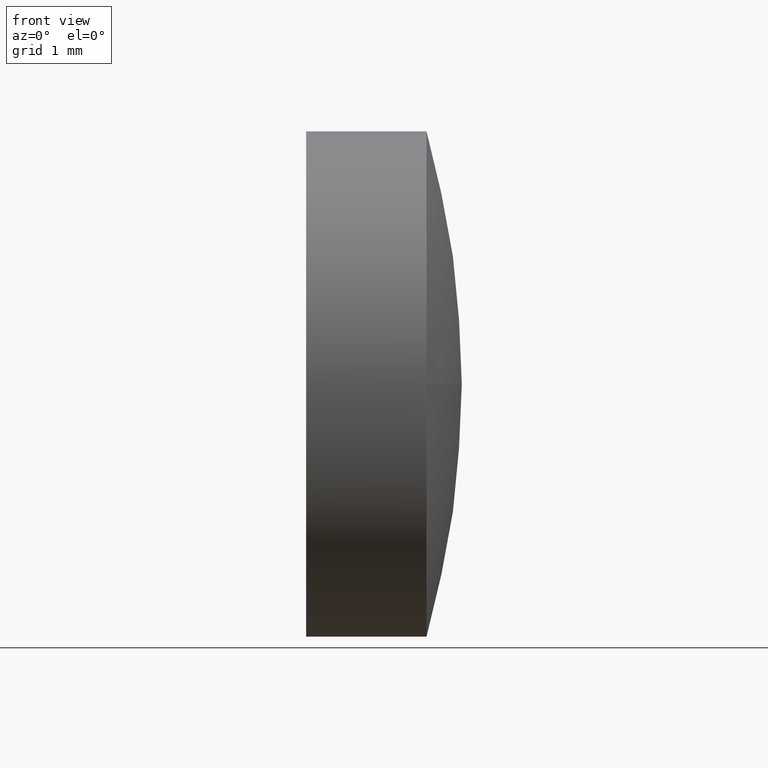
[diagram: clean part render]
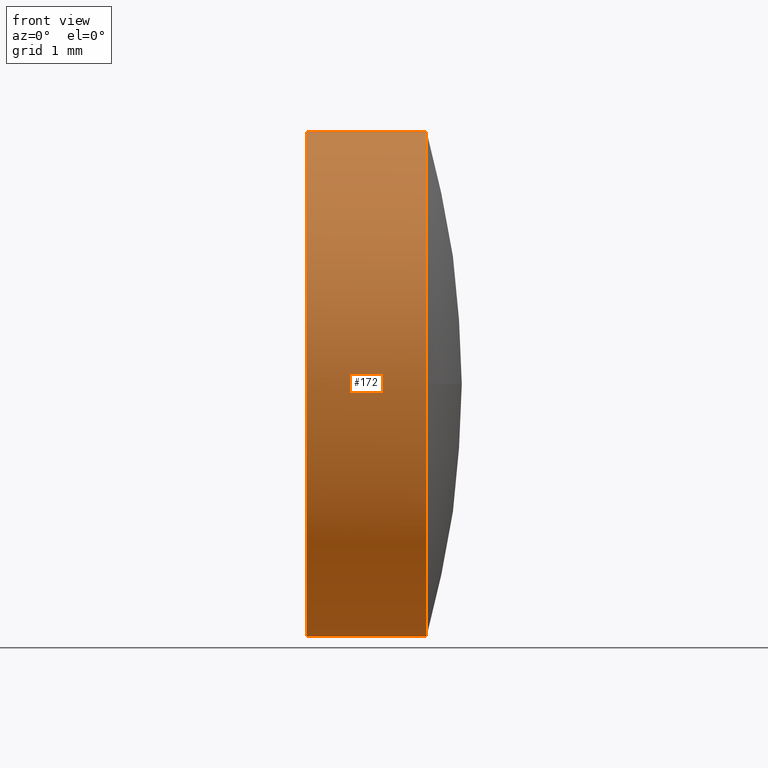
[diagram: same view with one face highlighted and labeled with its STEP entity id]
A machine part, front view. The second image highlights one B-rep face of the part: STEP entity #172.
In plain terms, the highlighted cylindrical surface (partial cylindrical patch) has radius 3.15 mm, axis along (-1, -0, -0).
Its self-contained STEP definition (entity closure, byte-faithful):
#3 = VERTEX_POINT ( 'NONE', #67 ) ;
#5 = CIRCLE ( 'NONE', #92, 3.150000000000013700 ) ;
#6 = VERTEX_POINT ( 'NONE', #104 ) ;
#7 = CARTESIAN_POINT ( 'NONE',  ( 555.8187275599364100, 146.3616492016622000, -3.150000000000013700 ) ) ;
#9 = FACE_OUTER_BOUND ( 'NONE', #122, .T. ) ;
#12 = DIRECTION ( 'NONE',  ( 0.0000000000000000000, 0.0000000000000000000, 1.000000000000000000 ) ) ;
#14 = DIRECTION ( 'NONE',  ( -1.000000000000000000, -0.0000000000000000000, -0.0000000000000000000 ) ) ;
#18 = VERTEX_POINT ( 'NONE', #179 ) ;
#19 = EDGE_CURVE ( 'NONE', #25, #3, #103, .T. ) ;
#25 = VERTEX_POINT ( 'NONE', #177 ) ;
#29 = CARTESIAN_POINT ( 'NONE',  ( 553.4580894711874600, 146.3616492016622000, -3.150000000000013700 ) ) ;
#39 = VERTEX_POINT ( 'NONE', #7 ) ;
#45 = DIRECTION ( 'NONE',  ( 0.0000000000000000000, 0.0000000000000000000, 1.000000000000000000 ) ) ;
#50 = AXIS2_PLACEMENT_3D ( 'NONE', #107, #14, #12 ) ;
#51 = LINE ( 'NONE', #29, #136 ) ;
#67 = CARTESIAN_POINT ( 'NONE',  ( 554.3187275599364100, 146.3616492016622000, 3.150000000000013700 ) ) ;
#68 = EDGE_CURVE ( 'NONE', #39, #18, #117, .T. ) ;
#77 = ORIENTED_EDGE ( 'NONE', *, *, #19, .T. ) ;
#79 = CARTESIAN_POINT ( 'NONE',  ( 553.4580894711874600, 146.3616492016622000, 3.150000000000013700 ) ) ;
#80 = AXIS2_PLACEMENT_3D ( 'NONE', #84, #96, #109 ) ;
#83 = ORIENTED_EDGE ( 'NONE', *, *, #163, .F. ) ;
#84 = CARTESIAN_POINT ( 'NONE',  ( 555.8187275599364100, 146.3616492016622000, 0.0000000000000000000 ) ) ;
#88 = EDGE_CURVE ( 'NONE', #18, #25, #5, .T. ) ;
#90 = ORIENTED_EDGE ( 'NONE', *, *, #68, .T. ) ;
#92 = AXIS2_PLACEMENT_3D ( 'NONE', #166, #185, #45 ) ;
#96 = DIRECTION ( 'NONE',  ( -1.000000000000000000, -0.0000000000000000000, -0.0000000000000000000 ) ) ;
#99 = VECTOR ( 'NONE', #162, 1000.000000000000000 ) ;
#103 = LINE ( 'NONE', #79, #99 ) ;
#104 = CARTESIAN_POINT ( 'NONE',  ( 554.3187275599364100, 146.3616492016622000, -3.150000000000013700 ) ) ;
#107 = CARTESIAN_POINT ( 'NONE',  ( 553.4580894711874600, 146.3616492016622000, 0.0000000000000000000 ) ) ;
#109 = DIRECTION ( 'NONE',  ( 0.0000000000000000000, 0.0000000000000000000, 1.000000000000000000 ) ) ;
#117 = CIRCLE ( 'NONE', #80, 3.150000000000013700 ) ;
#122 = EDGE_LOOP ( 'NONE', ( #83, #90, #145, #77, #148 ) ) ;
#124 = DIRECTION ( 'NONE',  ( -1.000000000000000000, -0.0000000000000000000, -0.0000000000000000000 ) ) ;
#133 = EDGE_CURVE ( 'NONE', #6, #3, #178, .T. ) ;
#136 = VECTOR ( 'NONE', #150, 1000.000000000000000 ) ;
#145 = ORIENTED_EDGE ( 'NONE', *, *, #88, .T. ) ;
#147 = CYLINDRICAL_SURFACE ( 'NONE', #50, 3.150000000000013700 ) ;
#148 = ORIENTED_EDGE ( 'NONE', *, *, #133, .F. ) ;
#150 = DIRECTION ( 'NONE',  ( -1.000000000000000000, -0.0000000000000000000, -0.0000000000000000000 ) ) ;
#162 = DIRECTION ( 'NONE',  ( -1.000000000000000000, -0.0000000000000000000, -0.0000000000000000000 ) ) ;
#163 = EDGE_CURVE ( 'NONE', #39, #6, #51, .T. ) ;
#166 = CARTESIAN_POINT ( 'NONE',  ( 555.8187275599364100, 146.3616492016622000, 0.0000000000000000000 ) ) ;
#169 = CARTESIAN_POINT ( 'NONE',  ( 554.3187275599364100, 146.3616492016622000, 0.0000000000000000000 ) ) ;
#172 = ADVANCED_FACE ( 'NONE', ( #9 ), #147, .T. ) ;
#177 = CARTESIAN_POINT ( 'NONE',  ( 555.8187275599364100, 146.3616492016622000, 3.150000000000013700 ) ) ;
#178 = CIRCLE ( 'NONE', #186, 3.150000000000013700 ) ;
#179 = CARTESIAN_POINT ( 'NONE',  ( 555.8187275599364100, 143.2116492016621700, -3.857637417314145400E-016 ) ) ;
#183 = DIRECTION ( 'NONE',  ( 0.0000000000000000000, 0.0000000000000000000, 1.000000000000000000 ) ) ;
#185 = DIRECTION ( 'NONE',  ( -1.000000000000000000, -0.0000000000000000000, -0.0000000000000000000 ) ) ;
#186 = AXIS2_PLACEMENT_3D ( 'NONE', #169, #124, #183 ) ;